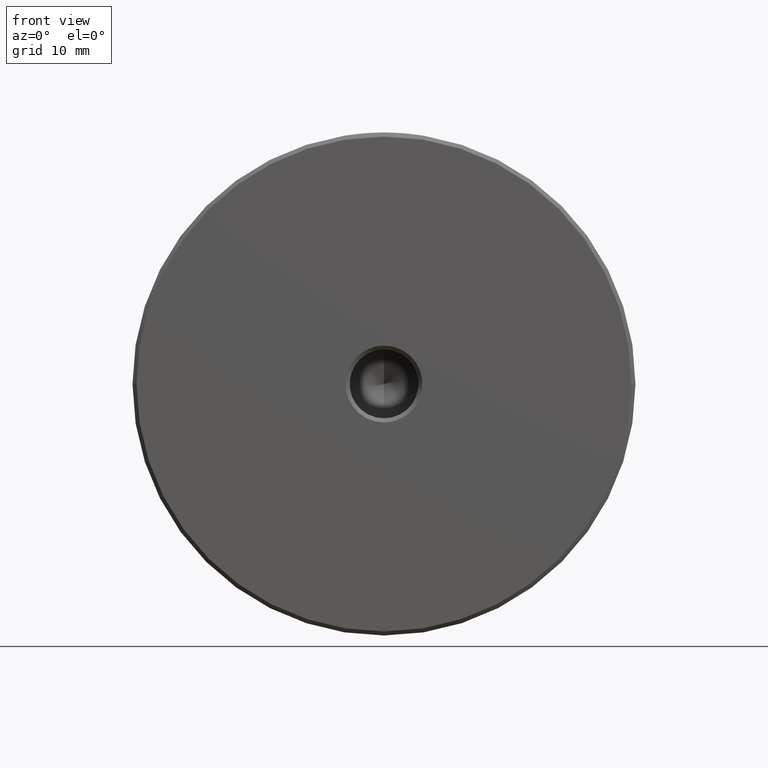
[diagram: clean part render]
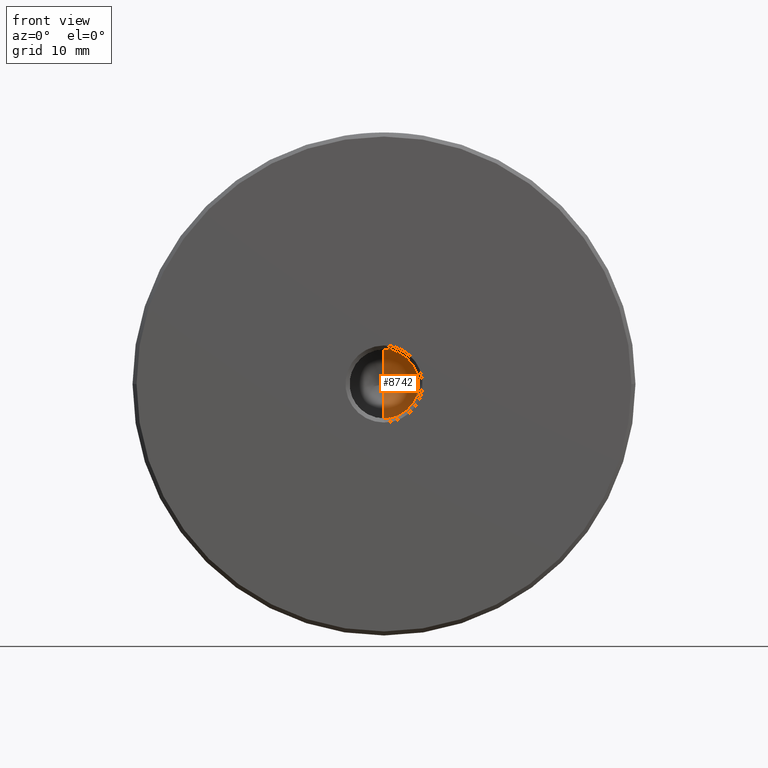
[diagram: same view with one face highlighted and labeled with its STEP entity id]
A machine part, front view. The second image highlights one B-rep face of the part: STEP entity #8742.
In plain terms, the highlighted conical surface has half-angle 59 deg.
Its self-contained STEP definition (entity closure, byte-faithful):
#304 = CARTESIAN_POINT ( 'NONE',  ( -6.938893903907228378E-15, 6.000000000000000000, -4.249999999999996447 ) ) ;
#437 = EDGE_CURVE ( 'NONE', #7729, #8682, #1876, .T. ) ;
#785 = CONICAL_SURFACE ( 'NONE', #12137, 4.249999999999996447, 1.029744258676653645 ) ;
#1876 = CIRCLE ( 'NONE', #6242, 4.249999999999996447 ) ;
#2331 = LINE ( 'NONE', #10488, #4005 ) ;
#2371 = DIRECTION ( 'NONE',  ( -0.000000000000000000, -1.000000000000000000, -0.000000000000000000 ) ) ;
#2686 = CARTESIAN_POINT ( 'NONE',  ( -6.938893903907228378E-15, 6.000000000000000000, 0.000000000000000000 ) ) ;
#3871 = VECTOR ( 'NONE', #4961, 1000.000000000000000 ) ;
#3960 = ORIENTED_EDGE ( 'NONE', *, *, #437, .T. ) ;
#4005 = VECTOR ( 'NONE', #9451, 1000.000000000000000 ) ;
#4341 = FACE_OUTER_BOUND ( 'NONE', #14145, .T. ) ;
#4961 = DIRECTION ( 'NONE',  ( 0.000000000000000000, -0.5150380749100549327, -0.8571673007021118895 ) ) ;
#5871 = EDGE_CURVE ( 'NONE', #11224, #8682, #2331, .T. ) ;
#6242 = AXIS2_PLACEMENT_3D ( 'NONE', #7042, #2371, #7140 ) ;
#6292 = DIRECTION ( 'NONE',  ( -0.000000000000000000, -1.000000000000000000, -0.000000000000000000 ) ) ;
#6403 = DIRECTION ( 'NONE',  ( 0.000000000000000000, 0.000000000000000000, -1.000000000000000000 ) ) ;
#7042 = CARTESIAN_POINT ( 'NONE',  ( -6.938893903907228378E-15, 6.000000000000000000, 0.000000000000000000 ) ) ;
#7140 = DIRECTION ( 'NONE',  ( 0.000000000000000000, 0.000000000000000000, -1.000000000000000000 ) ) ;
#7729 = VERTEX_POINT ( 'NONE', #304 ) ;
#8666 = CARTESIAN_POINT ( 'NONE',  ( -6.938893903907228378E-15, 6.000000000000000000, -4.249999999999996447 ) ) ;
#8682 = VERTEX_POINT ( 'NONE', #14421 ) ;
#8742 = ADVANCED_FACE ( 'NONE', ( #4341 ), #785, .F. ) ;
#9451 = DIRECTION ( 'NONE',  ( 1.049727191138618079E-16, -0.5150380749100549327, 0.8571673007021118895 ) ) ;
#10372 = ORIENTED_EDGE ( 'NONE', *, *, #11671, .T. ) ;
#10488 = CARTESIAN_POINT ( 'NONE',  ( -6.418419014269603998E-15, 6.000000000000000000, 4.249999999999996447 ) ) ;
#10707 = ORIENTED_EDGE ( 'NONE', *, *, #5871, .F. ) ;
#11224 = VERTEX_POINT ( 'NONE', #15326 ) ;
#11671 = EDGE_CURVE ( 'NONE', #11224, #7729, #15547, .T. ) ;
#12137 = AXIS2_PLACEMENT_3D ( 'NONE', #2686, #6292, #6403 ) ;
#14145 = EDGE_LOOP ( 'NONE', ( #10707, #10372, #3960 ) ) ;
#14421 = CARTESIAN_POINT ( 'NONE',  ( -6.418419014269603998E-15, 6.000000000000000000, 4.249999999999996447 ) ) ;
#15326 = CARTESIAN_POINT ( 'NONE',  ( -1.099337067027174648E-14, 8.553657630867132156, 0.000000000000000000 ) ) ;
#15547 = LINE ( 'NONE', #8666, #3871 ) ;